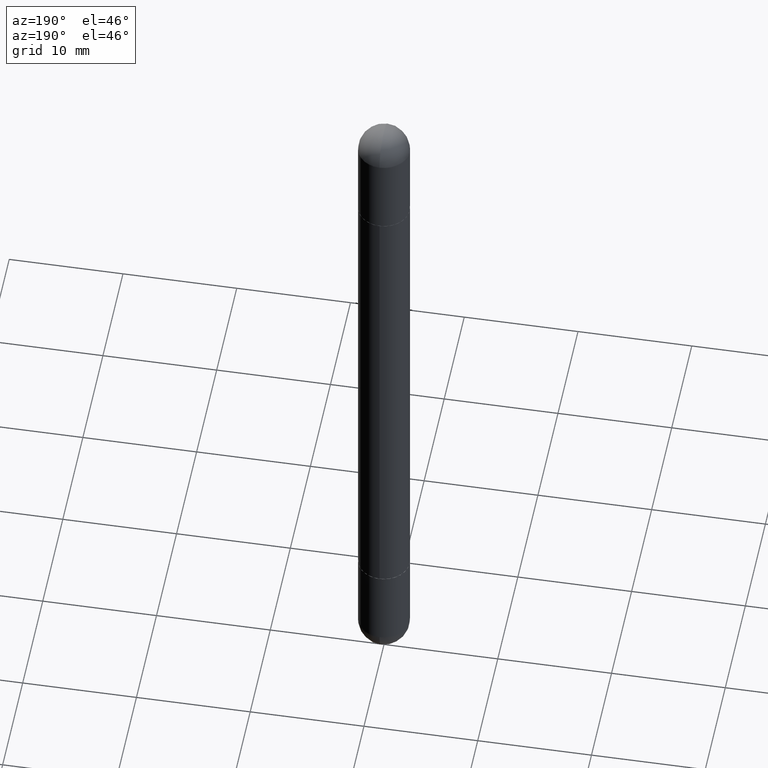
[diagram: clean part render]
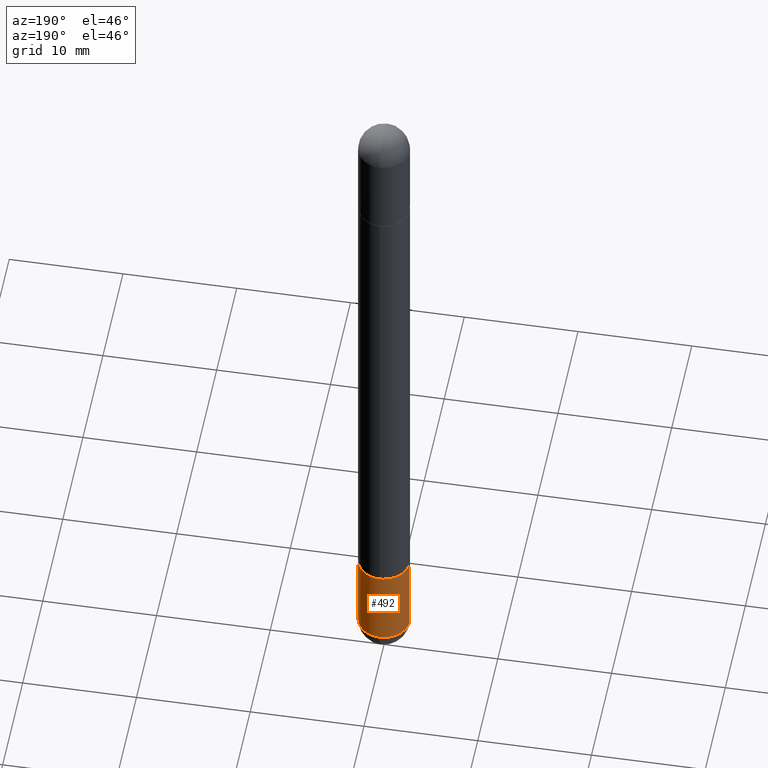
[diagram: same view with one face highlighted and labeled with its STEP entity id]
A machine part, auxiliary view. The second image highlights one B-rep face of the part: STEP entity #492.
In plain terms, the highlighted cylindrical surface (edge-blend (fillet) strip) has radius 2.2504 mm, axis along (-0, 0, 1).
Its self-contained STEP definition (entity closure, byte-faithful):
#8 = CARTESIAN_POINT ( 'NONE',  ( 0.08859999999999999820, -8.471032024301239972E-15, -2.391700000000000159 ) ) ;
#52 = VERTEX_POINT ( 'NONE', #8 ) ;
#62 = CARTESIAN_POINT ( 'NONE',  ( 0.08859999999999999820, -7.972797637248321554E-15, -2.106300000000000505 ) ) ;
#78 = EDGE_CURVE ( 'NONE', #52, #229, #785, .T. ) ;
#82 = DIRECTION ( 'NONE',  ( -2.445468806185136877E-29, 3.491481338843145188E-15, 1.000000000000000000 ) ) ;
#139 = EDGE_CURVE ( 'NONE', #229, #230, #710, .T. ) ;
#160 = CIRCLE ( 'NONE', #556, 0.08859999999999999820 ) ;
#166 = CARTESIAN_POINT ( 'NONE',  ( 5.848827743752992709E-29, -8.350575918111152281E-15, -2.391700000000000159 ) ) ;
#175 = ORIENTED_EDGE ( 'NONE', *, *, #78, .F. ) ;
#188 = ORIENTED_EDGE ( 'NONE', *, *, #247, .T. ) ;
#191 = FACE_OUTER_BOUND ( 'NONE', #586, .T. ) ;
#220 = DIRECTION ( 'NONE',  ( 1.000000000000000000, -6.982962677686269077E-15, 0.000000000000000000 ) ) ;
#229 = VERTEX_POINT ( 'NONE', #62 ) ;
#230 = VERTEX_POINT ( 'NONE', #751 ) ;
#245 = DIRECTION ( 'NONE',  ( 1.000000000000000000, -6.982962677686266711E-15, 4.876176775795935232E-29 ) ) ;
#247 = EDGE_CURVE ( 'NONE', #493, #289, #160, .T. ) ;
#250 = VECTOR ( 'NONE', #82, 39.37007874015748143 ) ;
#253 = CARTESIAN_POINT ( 'NONE',  ( -0.08859999999999999820, -7.222800667174788168E-15, -2.391700000000000159 ) ) ;
#263 = AXIS2_PLACEMENT_3D ( 'NONE', #166, #787, #410 ) ;
#276 = AXIS2_PLACEMENT_3D ( 'NONE', #622, #809, #245 ) ;
#282 = ORIENTED_EDGE ( 'NONE', *, *, #139, .F. ) ;
#289 = VERTEX_POINT ( 'NONE', #253 ) ;
#311 = CARTESIAN_POINT ( 'NONE',  ( 5.848827743752992709E-29, -8.350575918111152281E-15, -2.391700000000000159 ) ) ;
#360 = DIRECTION ( 'NONE',  ( -2.445468806185136877E-29, 3.491481338843145188E-15, 1.000000000000000000 ) ) ;
#385 = CYLINDRICAL_SURFACE ( 'NONE', #276, 0.08859999999999999820 ) ;
#410 = DIRECTION ( 'NONE',  ( 1.000000000000000000, -6.982962677686269077E-15, 0.000000000000000000 ) ) ;
#429 = DIRECTION ( 'NONE',  ( -2.445468806185136597E-29, 3.491481338843145583E-15, 1.000000000000000000 ) ) ;
#439 = EDGE_CURVE ( 'NONE', #289, #230, #598, .T. ) ;
#447 = CIRCLE ( 'NONE', #263, 0.08859999999999999820 ) ;
#448 = AXIS2_PLACEMENT_3D ( 'NONE', #734, #545, #220 ) ;
#453 = CARTESIAN_POINT ( 'NONE',  ( 0.08859999999999999820, -6.186904932430032487E-16, 4.320292623355198765E-30 ) ) ;
#480 = ORIENTED_EDGE ( 'NONE', *, *, #739, .T. ) ;
#487 = CARTESIAN_POINT ( 'NONE',  ( -0.08859999999999999820, 6.295408638834487519E-16, -4.358176489965846267E-30 ) ) ;
#492 = ADVANCED_FACE ( 'NONE', ( #191 ), #385, .T. ) ;
#493 = VERTEX_POINT ( 'NONE', #756 ) ;
#540 = VECTOR ( 'NONE', #360, 39.37007874015748143 ) ;
#545 = DIRECTION ( 'NONE',  ( -2.445468806185136597E-29, 3.491481338843145583E-15, 1.000000000000000000 ) ) ;
#556 = AXIS2_PLACEMENT_3D ( 'NONE', #311, #429, #685 ) ;
#586 = EDGE_LOOP ( 'NONE', ( #188, #794, #282, #175, #480 ) ) ;
#598 = LINE ( 'NONE', #487, #540 ) ;
#622 = CARTESIAN_POINT ( 'NONE',  ( 0.000000000000000000, 0.000000000000000000, 0.000000000000000000 ) ) ;
#685 = DIRECTION ( 'NONE',  ( 1.000000000000000000, -6.982962677686269077E-15, 0.000000000000000000 ) ) ;
#710 = CIRCLE ( 'NONE', #448, 0.08859999999999999820 ) ;
#734 = CARTESIAN_POINT ( 'NONE',  ( 5.150890946467754134E-29, -7.354107144005318601E-15, -2.106300000000000505 ) ) ;
#739 = EDGE_CURVE ( 'NONE', #52, #493, #447, .T. ) ;
#751 = CARTESIAN_POINT ( 'NONE',  ( -0.08859999999999999820, -7.222800667174788168E-15, -2.106300000000000505 ) ) ;
#756 = CARTESIAN_POINT ( 'NONE',  ( 6.186904932430607369E-16, 0.08859999999999150500, -2.391700000000000603 ) ) ;
#785 = LINE ( 'NONE', #453, #250 ) ;
#787 = DIRECTION ( 'NONE',  ( -2.445468806185136597E-29, 3.491481338843145583E-15, 1.000000000000000000 ) ) ;
#794 = ORIENTED_EDGE ( 'NONE', *, *, #439, .T. ) ;
#809 = DIRECTION ( 'NONE',  ( -2.445468806185136597E-29, 3.491481338843145583E-15, 1.000000000000000000 ) ) ;